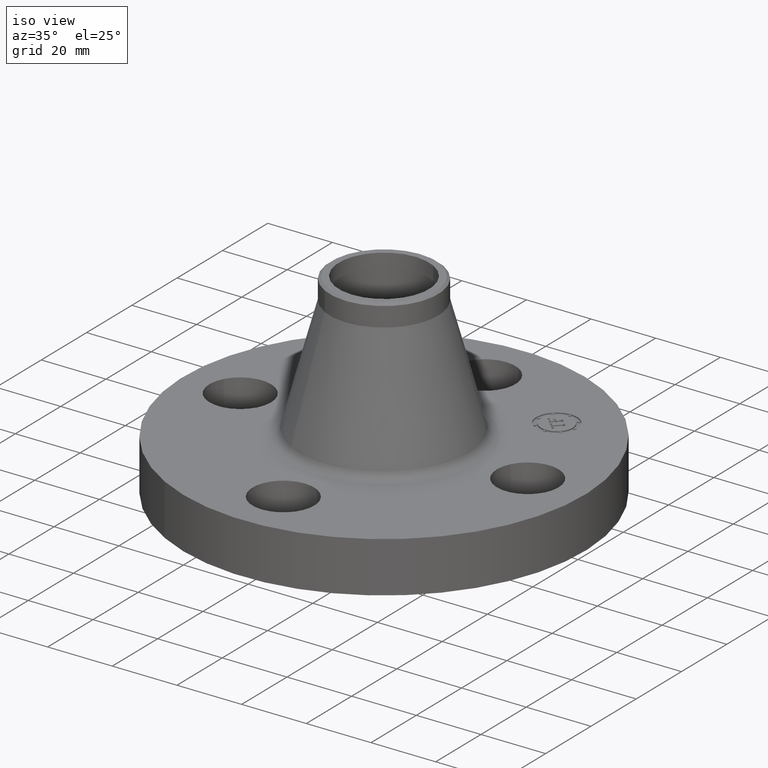
[diagram: clean part render]
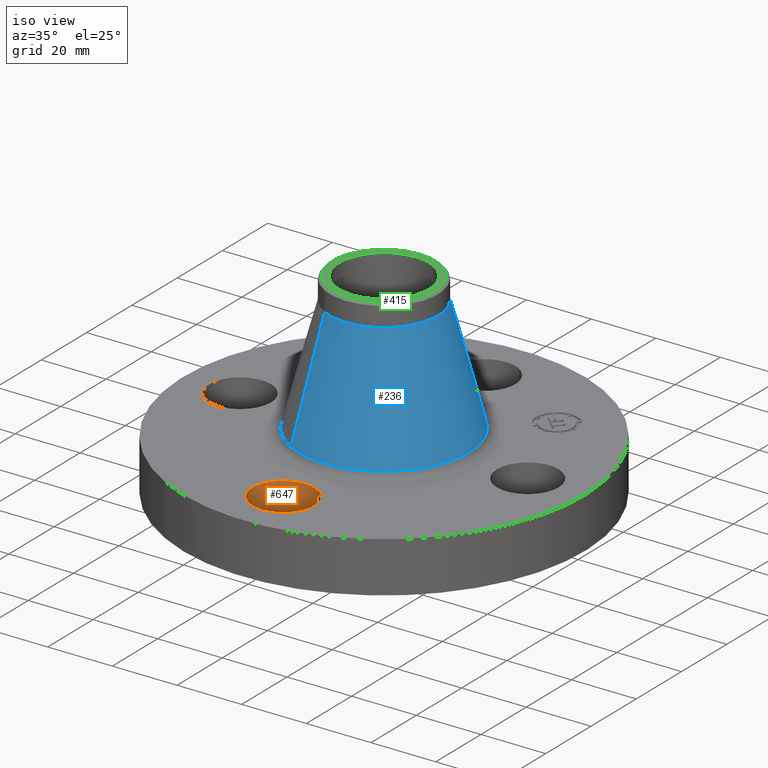
[diagram: same view with three faces highlighted in distinct colors, each labeled with its STEP entity id]
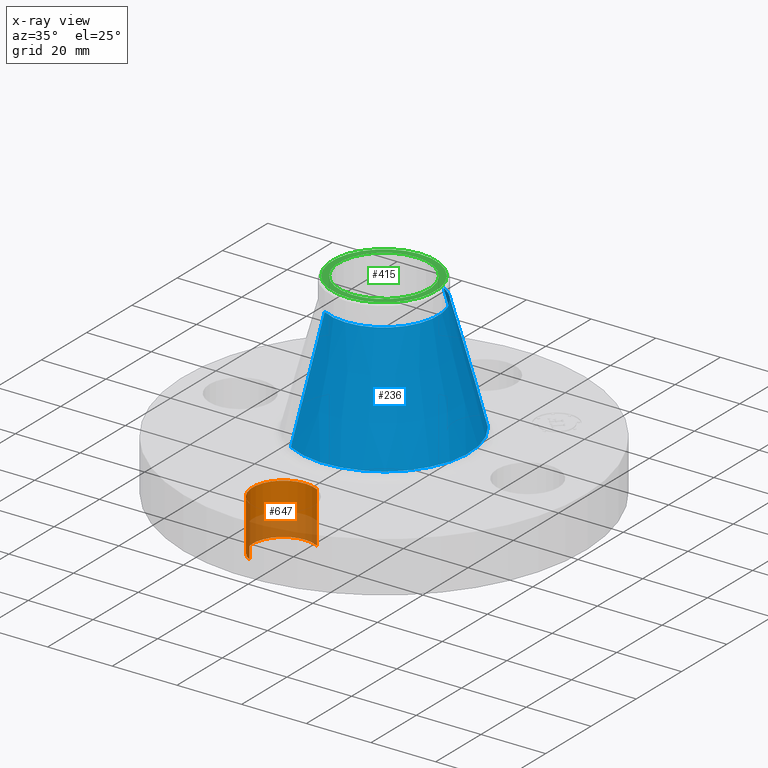
[diagram: x-ray of the same camera — body ghosted, the three highlighted faces saturated]
A machine part, iso view with three faces highlighted in distinct colors.
The next image is the same camera in x-ray (body ghosted, the three faces saturated) — at least one of them is partly hidden behind the body in this view.
Their STEP definitions:

[orange] entity #647 — the highlighted cylindrical surface (partial cylindrical patch) has radius 9.525 mm, axis along (0, -0, -1).
#475=AXIS2_PLACEMENT_3D('Circle Axis2P3D',#473,#474,$) ;
#608=AXIS2_PLACEMENT_3D('Cylinder Axis2P3D',#605,#606,#607) ;
#638=AXIS2_PLACEMENT_3D('Circle Axis2P3D',#636,#637,$) ;
#468=CARTESIAN_POINT('Vertex',(0.179784576977,-1.4209065393,0.)) ;
#470=CARTESIAN_POINT('Vertex',(-0.179784576977,-2.07909346072,0.)) ;
#473=CARTESIAN_POINT('Axis2P3D Location',(-2.09805925913E-016,-1.75000000001,0.)) ;
#605=CARTESIAN_POINT('Axis2P3D Location',(-1.72584639625E-016,-1.75000000001,0.616062992128)) ;
#610=CARTESIAN_POINT('Line Origine',(0.179784576977,-1.4209065393,0.310000000001)) ;
#614=CARTESIAN_POINT('Vertex',(0.179784576977,-1.4209065393,0.620000000002)) ;
#617=CARTESIAN_POINT('Line Origine',(-0.179784576977,-2.07909346072,0.310000000001)) ;
#621=CARTESIAN_POINT('Vertex',(-0.179784576977,-2.07909346072,0.620000000002)) ;
#636=CARTESIAN_POINT('Axis2P3D Location',(-1.72584639625E-016,-1.75000000001,0.620000000002)) ;
#474=DIRECTION('Axis2P3D Direction',(0.,0.,-0.0393700787402)) ;
#606=DIRECTION('Axis2P3D Direction',(0.,-0.,-0.0393700787402)) ;
#607=DIRECTION('Axis2P3D XDirection',(-0.0188750212049,-0.0345504945626,0.)) ;
#611=DIRECTION('Vector Direction',(0.,0.,-0.0393700787402)) ;
#618=DIRECTION('Vector Direction',(0.,0.,-0.0393700787402)) ;
#637=DIRECTION('Axis2P3D Direction',(0.,-0.,-0.0393700787402)) ;
#612=VECTOR('Line Direction',#611,0.0393700787402) ;
#619=VECTOR('Line Direction',#618,0.0393700787402) ;
#642=ORIENTED_EDGE('',*,*,#623,.F.) ;
#643=ORIENTED_EDGE('',*,*,#477,.T.) ;
#644=ORIENTED_EDGE('',*,*,#616,.T.) ;
#645=ORIENTED_EDGE('',*,*,#640,.F.) ;
#647=ADVANCED_FACE('PartBody',(#646),#609,.F.) ;
#476=CIRCLE('generated circle',#475,0.375000000001) ;
#639=CIRCLE('generated circle',#638,0.375000000001) ;
#609=CYLINDRICAL_SURFACE('generated cylinder',#608,0.375000000001) ;
#477=EDGE_CURVE('',#471,#469,#476,.T.) ;
#616=EDGE_CURVE('',#469,#615,#613,.F.) ;
#623=EDGE_CURVE('',#471,#622,#620,.F.) ;
#640=EDGE_CURVE('',#622,#615,#639,.T.) ;
#641=EDGE_LOOP('',(#642,#643,#644,#645)) ;
#646=FACE_OUTER_BOUND('',#641,.T.) ;
#613=LINE('Line',#610,#612) ;
#620=LINE('Line',#617,#619) ;
#469=VERTEX_POINT('',#468) ;
#471=VERTEX_POINT('',#470) ;
#615=VERTEX_POINT('',#614) ;
#622=VERTEX_POINT('',#621) ;

[blue] entity #236 — the highlighted conical surface has half-angle 14.944 deg.
#172=AXIS2_PLACEMENT_3D('Circle Axis2P3D',#170,#171,$) ;
#209=AXIS2_PLACEMENT_3D('Cone Axis2P3D',#206,#207,#208) ;
#220=AXIS2_PLACEMENT_3D('Circle Axis2P3D',#218,#219,$) ;
#167=CARTESIAN_POINT('Vertex',(0.49679544257,0.909377957827,0.70905432688)) ;
#170=CARTESIAN_POINT('Axis2P3D Location',(0.,0.,0.70905432688)) ;
#174=CARTESIAN_POINT('Vertex',(-0.49679544257,-0.909377957827,0.70905432688)) ;
#206=CARTESIAN_POINT('Axis2P3D Location',(0.,0.,2.11864201628)) ;
#211=CARTESIAN_POINT('Line Origine',(0.406608149025,0.744291224338,1.41384817158)) ;
#215=CARTESIAN_POINT('Vertex',(0.31642085548,0.57920449085,2.11864201628)) ;
#218=CARTESIAN_POINT('Axis2P3D Location',(0.,0.,2.11864201628)) ;
#222=CARTESIAN_POINT('Vertex',(-0.31642085548,-0.57920449085,2.11864201628)) ;
#225=CARTESIAN_POINT('Line Origine',(-0.406608149025,-0.744291224338,1.41384817158)) ;
#171=DIRECTION('Axis2P3D Direction',(0.,0.,-0.0393700787402)) ;
#207=DIRECTION('Axis2P3D Direction',(0.,0.,-0.0393700787402)) ;
#208=DIRECTION('Axis2P3D XDirection',(-0.0188750212049,-0.0345504945626,0.)) ;
#212=DIRECTION('Vector Direction',(0.00486750197,0.00890990259149,-0.0380384563355)) ;
#219=DIRECTION('Axis2P3D Direction',(0.,0.,-0.0393700787402)) ;
#226=DIRECTION('Vector Direction',(-0.00486750197,-0.00890990259149,-0.0380384563355)) ;
#213=VECTOR('Line Direction',#212,0.0393700787402) ;
#227=VECTOR('Line Direction',#226,0.0393700787402) ;
#231=ORIENTED_EDGE('',*,*,#176,.F.) ;
#232=ORIENTED_EDGE('',*,*,#217,.T.) ;
#233=ORIENTED_EDGE('',*,*,#224,.T.) ;
#234=ORIENTED_EDGE('',*,*,#229,.F.) ;
#236=ADVANCED_FACE('PartBody',(#235),#210,.T.) ;
#173=CIRCLE('generated circle',#172,1.03623066059) ;
#221=CIRCLE('generated circle',#220,0.660000000003) ;
#210=CONICAL_SURFACE('Cone',#209,0.660000000003,0.2608279739) ;
#176=EDGE_CURVE('',#168,#175,#173,.T.) ;
#217=EDGE_CURVE('',#168,#216,#214,.F.) ;
#224=EDGE_CURVE('',#216,#223,#221,.T.) ;
#229=EDGE_CURVE('',#175,#223,#228,.F.) ;
#230=EDGE_LOOP('',(#231,#232,#233,#234)) ;
#235=FACE_OUTER_BOUND('',#230,.T.) ;
#214=LINE('Line',#211,#213) ;
#228=LINE('Line',#225,#227) ;
#168=VERTEX_POINT('',#167) ;
#175=VERTEX_POINT('',#174) ;
#216=VERTEX_POINT('',#215) ;
#223=VERTEX_POINT('',#222) ;

[green] entity #415 — the highlighted planar face has unit normal (0, 0, -1).
#322=AXIS2_PLACEMENT_3D('Circle Axis2P3D',#320,#321,$) ;
#347=AXIS2_PLACEMENT_3D('Circle Axis2P3D',#345,#346,$) ;
#382=AXIS2_PLACEMENT_3D('Circle Axis2P3D',#380,#381,$) ;
#400=AXIS2_PLACEMENT_3D('Plane Axis2P3D',#397,#398,#399) ;
#404=AXIS2_PLACEMENT_3D('Circle Axis2P3D',#402,#403,$) ;
#317=CARTESIAN_POINT('Vertex',(0.300714950335,-0.550455024324,2.38000000001)) ;
#320=CARTESIAN_POINT('Axis2P3D Location',(0.,0.,2.38000000001)) ;
#324=CARTESIAN_POINT('Vertex',(-0.300714950335,0.550455024324,2.38000000001)) ;
#345=CARTESIAN_POINT('Axis2P3D Location',(0.,0.,2.38000000001)) ;
#349=CARTESIAN_POINT('Vertex',(-0.262964907925,-0.481354035199,2.38000000001)) ;
#351=CARTESIAN_POINT('Vertex',(0.262964907925,0.481354035199,2.38000000001)) ;
#380=CARTESIAN_POINT('Axis2P3D Location',(0.,0.,2.38000000001)) ;
#397=CARTESIAN_POINT('Axis2P3D Location',(0.,0.660000000003,2.38000000001)) ;
#402=CARTESIAN_POINT('Axis2P3D Location',(0.,0.,2.38000000001)) ;
#321=DIRECTION('Axis2P3D Direction',(0.,0.,-0.0393700787402)) ;
#346=DIRECTION('Axis2P3D Direction',(0.,0.,-0.0393700787402)) ;
#381=DIRECTION('Axis2P3D Direction',(0.,0.,-0.0393700787402)) ;
#398=DIRECTION('Axis2P3D Direction',(0.,0.,-0.0393700787402)) ;
#399=DIRECTION('Axis2P3D XDirection',(0.0393700787402,0.,0.)) ;
#403=DIRECTION('Axis2P3D Direction',(0.,0.,-0.0393700787402)) ;
#408=ORIENTED_EDGE('',*,*,#406,.T.) ;
#409=ORIENTED_EDGE('',*,*,#326,.T.) ;
#412=ORIENTED_EDGE('',*,*,#353,.T.) ;
#413=ORIENTED_EDGE('',*,*,#384,.T.) ;
#414=FACE_BOUND('',#411,.T.) ;
#415=ADVANCED_FACE('PartBody',(#410,#414),#401,.F.) ;
#323=CIRCLE('generated circle',#322,0.627240157482) ;
#348=CIRCLE('generated circle',#347,0.548500000002) ;
#383=CIRCLE('generated circle',#382,0.548500000002) ;
#405=CIRCLE('generated circle',#404,0.627240157483) ;
#326=EDGE_CURVE('',#325,#318,#323,.F.) ;
#353=EDGE_CURVE('',#350,#352,#348,.T.) ;
#384=EDGE_CURVE('',#352,#350,#383,.T.) ;
#406=EDGE_CURVE('',#318,#325,#405,.F.) ;
#407=EDGE_LOOP('',(#408,#409)) ;
#411=EDGE_LOOP('',(#412,#413)) ;
#410=FACE_OUTER_BOUND('',#407,.T.) ;
#401=PLANE('',#400) ;
#318=VERTEX_POINT('',#317) ;
#325=VERTEX_POINT('',#324) ;
#350=VERTEX_POINT('',#349) ;
#352=VERTEX_POINT('',#351) ;